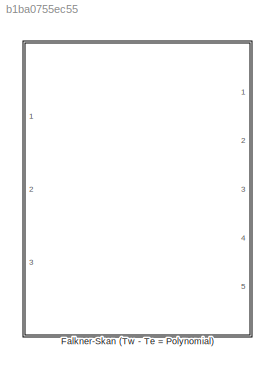
MODEL slx_b1ba0755ec55
KIND library
CONFIG AbsTol = auto
CONFIG FixedStep = auto
CONFIG MaxStep = auto
CONFIG MinStep = auto
CONFIG RelTol = 1e-3
CONFIG SampleTimeConstraint = Unconstrained
CONFIG Solver = ode45
CONFIG SolverMode = Auto
CONFIG SolverName = ode45
CONFIG StartTime = 0.0
CONFIG StopTime = 10.0
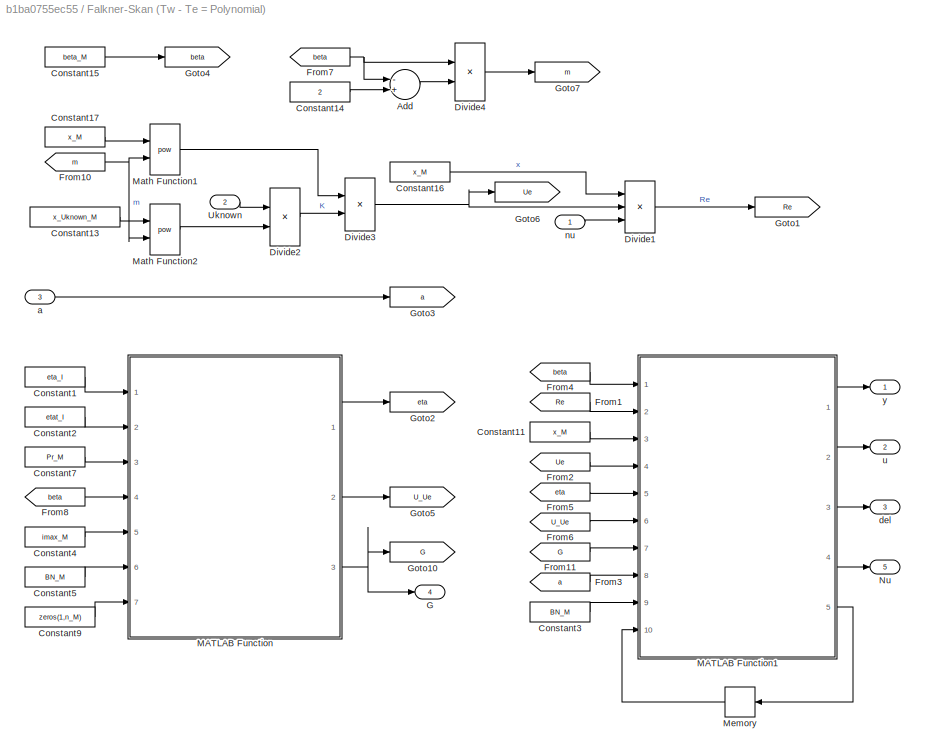
BLOCK [SubSystem] Falkner-Skan (Tw - Te = Polynomial)
  Ports = [3, 5]
  RequestExecContextInheritance = off
BLOCK [Sum] Falkner-Skan (Tw - Te = Polynomial)/Add
  InputSameDT = off
  Inputs = -+
  OutDataTypeStr = Inherit: Inherit via internal rule
  Ports = [2, 1]
  SaturateOnIntegerOverflow = off
BLOCK [Constant] Falkner-Skan (Tw - Te = Polynomial)/Constant1
  Value = eta_I
BLOCK [Constant] Falkner-Skan (Tw - Te = Polynomial)/Constant11
  Value = x_M
BLOCK [Constant] Falkner-Skan (Tw - Te = Polynomial)/Constant13
  Value = x_Uknown_M
BLOCK [Constant] Falkner-Skan (Tw - Te = Polynomial)/Constant14
  Value = 2
BLOCK [Constant] Falkner-Skan (Tw - Te = Polynomial)/Constant15
  Value = beta_M
BLOCK [Constant] Falkner-Skan (Tw - Te = Polynomial)/Constant16
  Value = x_M
BLOCK [Constant] Falkner-Skan (Tw - Te = Polynomial)/Constant17
  Value = x_M
BLOCK [Constant] Falkner-Skan (Tw - Te = Polynomial)/Constant2
  Value = etat_I
BLOCK [Constant] Falkner-Skan (Tw - Te = Polynomial)/Constant3
  Value = BN_M
BLOCK [Constant] Falkner-Skan (Tw - Te = Polynomial)/Constant4
  Value = imax_M
BLOCK [Constant] Falkner-Skan (Tw - Te = Polynomial)/Constant5
  Value = BN_M
BLOCK [Constant] Falkner-Skan (Tw - Te = Polynomial)/Constant7
  Value = Pr_M
BLOCK [Constant] Falkner-Skan (Tw - Te = Polynomial)/Constant9
  Value = zeros(1,n_M)
BLOCK [Product] Falkner-Skan (Tw - Te = Polynomial)/Divide1
  InputSameDT = off
  Inputs = **/
  OutDataTypeStr = Inherit: Inherit via internal rule
  Ports = [3, 1]
  RndMeth = Floor
  SaturateOnIntegerOverflow = off
BLOCK [Product] Falkner-Skan (Tw - Te = Polynomial)/Divide2
  InputSameDT = off
  Inputs = */
  OutDataTypeStr = Inherit: Inherit via internal rule
  Ports = [2, 1]
  RndMeth = Floor
  SaturateOnIntegerOverflow = off
BLOCK [Product] Falkner-Skan (Tw - Te = Polynomial)/Divide3
  InputSameDT = off
  Inputs = **
  OutDataTypeStr = Inherit: Inherit via internal rule
  Ports = [2, 1]
  RndMeth = Floor
  SaturateOnIntegerOverflow = off
BLOCK [Product] Falkner-Skan (Tw - Te = Polynomial)/Divide4
  InputSameDT = off
  Inputs = */
  OutDataTypeStr = Inherit: Inherit via internal rule
  Ports = [2, 1]
  RndMeth = Floor
  SaturateOnIntegerOverflow = off
BLOCK [From] Falkner-Skan (Tw - Te = Polynomial)/From1
  GotoTag = Re
BLOCK [From] Falkner-Skan (Tw - Te = Polynomial)/From10
  GotoTag = m
BLOCK [From] Falkner-Skan (Tw - Te = Polynomial)/From11
  GotoTag = G
BLOCK [From] Falkner-Skan (Tw - Te = Polynomial)/From2
  GotoTag = Ue
BLOCK [From] Falkner-Skan (Tw - Te = Polynomial)/From3
  GotoTag = a
BLOCK [From] Falkner-Skan (Tw - Te = Polynomial)/From4
  GotoTag = beta
BLOCK [From] Falkner-Skan (Tw - Te = Polynomial)/From5
  GotoTag = eta
BLOCK [From] Falkner-Skan (Tw - Te = Polynomial)/From6
  GotoTag = U_Ue
BLOCK [From] Falkner-Skan (Tw - Te = Polynomial)/From7
  GotoTag = beta
BLOCK [From] Falkner-Skan (Tw - Te = Polynomial)/From8
  GotoTag = beta
BLOCK [Outport] Falkner-Skan (Tw - Te = Polynomial)/G
  IconDisplay = Port number
  Port = 4
BLOCK [Goto] Falkner-Skan (Tw - Te = Polynomial)/Goto1
  GotoTag = Re
BLOCK [Goto] Falkner-Skan (Tw - Te = Polynomial)/Goto10
  GotoTag = G
BLOCK [Goto] Falkner-Skan (Tw - Te = Polynomial)/Goto2
  GotoTag = eta
BLOCK [Goto] Falkner-Skan (Tw - Te = Polynomial)/Goto3
  GotoTag = a
BLOCK [Goto] Falkner-Skan (Tw - Te = Polynomial)/Goto4
  GotoTag = beta
BLOCK [Goto] Falkner-Skan (Tw - Te = Polynomial)/Goto5
  GotoTag = U_Ue
BLOCK [Goto] Falkner-Skan (Tw - Te = Polynomial)/Goto6
  GotoTag = Ue
BLOCK [Goto] Falkner-Skan (Tw - Te = Polynomial)/Goto7
  GotoTag = m
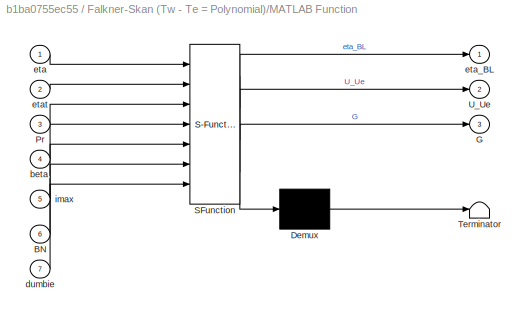
BLOCK [SubSystem] Falkner-Skan (Tw - Te = Polynomial)/MATLAB Function
  ErrorFcn = Stateflow.Translate.translate
  PermitHierarchicalResolution = ExplicitOnly
  Ports = [7, 3]
  RequestExecContextInheritance = off
  SFBlockType = MATLAB Function
  TreatAsAtomicUnit = on
BLOCK [Demux] Falkner-Skan (Tw - Te = Polynomial)/MATLAB Function/ Demux 
  Outputs = 1
  Ports = [1, 1]
BLOCK [S-Function] Falkner-Skan (Tw - Te = Polynomial)/MATLAB Function/ SFunction 
  EnableBusSupport = on
  FunctionName = sf_sfun
  PortCounts = [7 4]
  Ports = [7, 4]
  Tag = Stateflow S-Function lib_Convection_FalknerSkanTempVary 2
BLOCK [Terminator] Falkner-Skan (Tw - Te = Polynomial)/MATLAB Function/ Terminator 
BLOCK [Inport] Falkner-Skan (Tw - Te = Polynomial)/MATLAB Function/BN
  IconDisplay = Port number
  Port = 6
BLOCK [Outport] Falkner-Skan (Tw - Te = Polynomial)/MATLAB Function/G
  IconDisplay = Port number
  Port = 3
BLOCK [Inport] Falkner-Skan (Tw - Te = Polynomial)/MATLAB Function/Pr
  IconDisplay = Port number
  Port = 3
BLOCK [Outport] Falkner-Skan (Tw - Te = Polynomial)/MATLAB Function/U_Ue
  IconDisplay = Port number
  Port = 2
BLOCK [Inport] Falkner-Skan (Tw - Te = Polynomial)/MATLAB Function/beta
  IconDisplay = Port number
  Port = 4
BLOCK [Inport] Falkner-Skan (Tw - Te = Polynomial)/MATLAB Function/dumbie
  IconDisplay = Port number
  Port = 7
BLOCK [Inport] Falkner-Skan (Tw - Te = Polynomial)/MATLAB Function/eta
  IconDisplay = Port number
BLOCK [Outport] Falkner-Skan (Tw - Te = Polynomial)/MATLAB Function/eta_BL
  IconDisplay = Port number
BLOCK [Inport] Falkner-Skan (Tw - Te = Polynomial)/MATLAB Function/etat
  IconDisplay = Port number
  Port = 2
BLOCK [Inport] Falkner-Skan (Tw - Te = Polynomial)/MATLAB Function/imax
  IconDisplay = Port number
  Port = 5
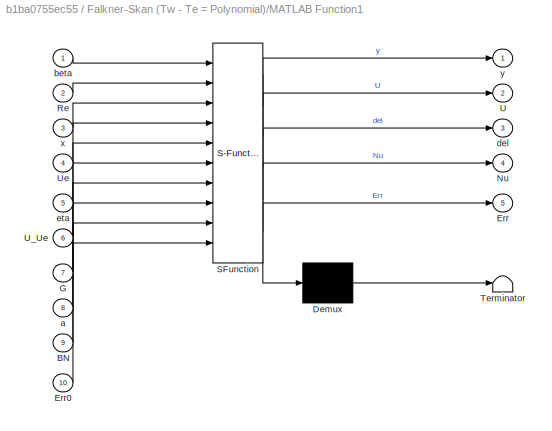
BLOCK [SubSystem] Falkner-Skan (Tw - Te = Polynomial)/MATLAB Function1
  ErrorFcn = Stateflow.Translate.translate
  PermitHierarchicalResolution = ExplicitOnly
  Ports = [10, 5]
  RequestExecContextInheritance = off
  SFBlockType = MATLAB Function
  TreatAsAtomicUnit = on
BLOCK [Demux] Falkner-Skan (Tw - Te = Polynomial)/MATLAB Function1/ Demux 
  Outputs = 1
  Ports = [1, 1]
BLOCK [S-Function] Falkner-Skan (Tw - Te = Polynomial)/MATLAB Function1/ SFunction 
  EnableBusSupport = on
  FunctionName = sf_sfun
  PortCounts = [10 6]
  Ports = [10, 6]
  Tag = Stateflow S-Function lib_Convection_FalknerSkanTempVary 1
BLOCK [Terminator] Falkner-Skan (Tw - Te = Polynomial)/MATLAB Function1/ Terminator 
BLOCK [Inport] Falkner-Skan (Tw - Te = Polynomial)/MATLAB Function1/BN
  IconDisplay = Port number
  Port = 9
BLOCK [Outport] Falkner-Skan (Tw - Te = Polynomial)/MATLAB Function1/Err
  IconDisplay = Port number
  Port = 5
BLOCK [Inport] Falkner-Skan (Tw - Te = Polynomial)/MATLAB Function1/Err0
  IconDisplay = Port number
  Port = 10
BLOCK [Inport] Falkner-Skan (Tw - Te = Polynomial)/MATLAB Function1/G
  IconDisplay = Port number
  Port = 7
BLOCK [Outport] Falkner-Skan (Tw - Te = Polynomial)/MATLAB Function1/Nu
  IconDisplay = Port number
  Port = 4
BLOCK [Inport] Falkner-Skan (Tw - Te = Polynomial)/MATLAB Function1/Re
  IconDisplay = Port number
  Port = 2
BLOCK [Outport] Falkner-Skan (Tw - Te = Polynomial)/MATLAB Function1/U
  IconDisplay = Port number
  Port = 2
BLOCK [Inport] Falkner-Skan (Tw - Te = Polynomial)/MATLAB Function1/U_Ue
  IconDisplay = Port number
  Port = 6
BLOCK [Inport] Falkner-Skan (Tw - Te = Polynomial)/MATLAB Function1/Ue
  IconDisplay = Port number
  Port = 4
BLOCK [Inport] Falkner-Skan (Tw - Te = Polynomial)/MATLAB Function1/a
  IconDisplay = Port number
  Port = 8
BLOCK [Inport] Falkner-Skan (Tw - Te = Polynomial)/MATLAB Function1/beta
  IconDisplay = Port number
BLOCK [Outport] Falkner-Skan (Tw - Te = Polynomial)/MATLAB Function1/del
  IconDisplay = Port number
  Port = 3
BLOCK [Inport] Falkner-Skan (Tw - Te = Polynomial)/MATLAB Function1/eta
  IconDisplay = Port number
  Port = 5
BLOCK [Inport] Falkner-Skan (Tw - Te = Polynomial)/MATLAB Function1/x
  IconDisplay = Port number
  Port = 3
BLOCK [Outport] Falkner-Skan (Tw - Te = Polynomial)/MATLAB Function1/y
  IconDisplay = Port number
BLOCK [Math] Falkner-Skan (Tw - Te = Polynomial)/Math Function1
  Operator = pow
  Ports = [2, 1]
BLOCK [Math] Falkner-Skan (Tw - Te = Polynomial)/Math Function2
  Operator = pow
  Ports = [2, 1]
BLOCK [Memory] Falkner-Skan (Tw - Te = Polynomial)/Memory
  X0 = zeros(1,14)
BLOCK [Outport] Falkner-Skan (Tw - Te = Polynomial)/Nu
  IconDisplay = Port number
  Port = 5
BLOCK [Inport] Falkner-Skan (Tw - Te = Polynomial)/Uknown
  IconDisplay = Port number
  Port = 2
BLOCK [Inport] Falkner-Skan (Tw - Te = Polynomial)/a
  IconDisplay = Port number
  Port = 3
BLOCK [Outport] Falkner-Skan (Tw - Te = Polynomial)/del
  IconDisplay = Port number
  Port = 3
BLOCK [Inport] Falkner-Skan (Tw - Te = Polynomial)/nu
  IconDisplay = Port number
BLOCK [Outport] Falkner-Skan (Tw - Te = Polynomial)/u
  IconDisplay = Port number
  Port = 2
BLOCK [Outport] Falkner-Skan (Tw - Te = Polynomial)/y
  IconDisplay = Port number
LINE Falkner-Skan (Tw - Te = Polynomial)/Add:1 -> Falkner-Skan (Tw - Te = Polynomial)/Divide4:2
LINE Falkner-Skan (Tw - Te = Polynomial)/Constant11:1 -> Falkner-Skan (Tw - Te = Polynomial)/MATLAB Function1:3
LINE Falkner-Skan (Tw - Te = Polynomial)/Constant13:1 -> Falkner-Skan (Tw - Te = Polynomial)/Math Function2:1
LINE Falkner-Skan (Tw - Te = Polynomial)/Constant14:1 -> Falkner-Skan (Tw - Te = Polynomial)/Add:2
LINE Falkner-Skan (Tw - Te = Polynomial)/Constant15:1 -> Falkner-Skan (Tw - Te = Polynomial)/Goto4:1
LINE Falkner-Skan (Tw - Te = Polynomial)/Constant16:1 -> Falkner-Skan (Tw - Te = Polynomial)/Divide1:1
LINE Falkner-Skan (Tw - Te = Polynomial)/Constant17:1 -> Falkner-Skan (Tw - Te = Polynomial)/Math Function1:1
LINE Falkner-Skan (Tw - Te = Polynomial)/Constant1:1 -> Falkner-Skan (Tw - Te = Polynomial)/MATLAB Function:1
LINE Falkner-Skan (Tw - Te = Polynomial)/Constant2:1 -> Falkner-Skan (Tw - Te = Polynomial)/MATLAB Function:2
LINE Falkner-Skan (Tw - Te = Polynomial)/Constant3:1 -> Falkner-Skan (Tw - Te = Polynomial)/MATLAB Function1:9
LINE Falkner-Skan (Tw - Te = Polynomial)/Constant4:1 -> Falkner-Skan (Tw - Te = Polynomial)/MATLAB Function:5
LINE Falkner-Skan (Tw - Te = Polynomial)/Constant5:1 -> Falkner-Skan (Tw - Te = Polynomial)/MATLAB Function:6
LINE Falkner-Skan (Tw - Te = Polynomial)/Constant7:1 -> Falkner-Skan (Tw - Te = Polynomial)/MATLAB Function:3
LINE Falkner-Skan (Tw - Te = Polynomial)/Constant9:1 -> Falkner-Skan (Tw - Te = Polynomial)/MATLAB Function:7
LINE Falkner-Skan (Tw - Te = Polynomial)/Divide1:1 -> Falkner-Skan (Tw - Te = Polynomial)/Goto1:1
LINE Falkner-Skan (Tw - Te = Polynomial)/Divide2:1 -> Falkner-Skan (Tw - Te = Polynomial)/Divide3:2
NET Falkner-Skan (Tw - Te = Polynomial)/Divide3:1 -> Falkner-Skan (Tw - Te = Polynomial)/Divide1:2, Falkner-Skan (Tw - Te = Polynomial)/Goto6:1
LINE Falkner-Skan (Tw - Te = Polynomial)/Divide4:1 -> Falkner-Skan (Tw - Te = Polynomial)/Goto7:1
NET Falkner-Skan (Tw - Te = Polynomial)/From10:1 -> Falkner-Skan (Tw - Te = Polynomial)/Math Function1:2, Falkner-Skan (Tw - Te = Polynomial)/Math Function2:2
LINE Falkner-Skan (Tw - Te = Polynomial)/From11:1 -> Falkner-Skan (Tw - Te = Polynomial)/MATLAB Function1:7
LINE Falkner-Skan (Tw - Te = Polynomial)/From1:1 -> Falkner-Skan (Tw - Te = Polynomial)/MATLAB Function1:2
LINE Falkner-Skan (Tw - Te = Polynomial)/From2:1 -> Falkner-Skan (Tw - Te = Polynomial)/MATLAB Function1:4
LINE Falkner-Skan (Tw - Te = Polynomial)/From3:1 -> Falkner-Skan (Tw - Te = Polynomial)/MATLAB Function1:8
LINE Falkner-Skan (Tw - Te = Polynomial)/From4:1 -> Falkner-Skan (Tw - Te = Polynomial)/MATLAB Function1:1
LINE Falkner-Skan (Tw - Te = Polynomial)/From5:1 -> Falkner-Skan (Tw - Te = Polynomial)/MATLAB Function1:5
LINE Falkner-Skan (Tw - Te = Polynomial)/From6:1 -> Falkner-Skan (Tw - Te = Polynomial)/MATLAB Function1:6
NET Falkner-Skan (Tw - Te = Polynomial)/From7:1 -> Falkner-Skan (Tw - Te = Polynomial)/Add:1, Falkner-Skan (Tw - Te = Polynomial)/Divide4:1
LINE Falkner-Skan (Tw - Te = Polynomial)/From8:1 -> Falkner-Skan (Tw - Te = Polynomial)/MATLAB Function:4
LINE Falkner-Skan (Tw - Te = Polynomial)/MATLAB Function1:1 -> Falkner-Skan (Tw - Te = Polynomial)/y:1
LINE Falkner-Skan (Tw - Te = Polynomial)/MATLAB Function1:2 -> Falkner-Skan (Tw - Te = Polynomial)/u:1
LINE Falkner-Skan (Tw - Te = Polynomial)/MATLAB Function1:3 -> Falkner-Skan (Tw - Te = Polynomial)/del:1
LINE Falkner-Skan (Tw - Te = Polynomial)/MATLAB Function1:4 -> Falkner-Skan (Tw - Te = Polynomial)/Nu:1
LINE Falkner-Skan (Tw - Te = Polynomial)/MATLAB Function1:5 -> Falkner-Skan (Tw - Te = Polynomial)/Memory:1
LINE Falkner-Skan (Tw - Te = Polynomial)/MATLAB Function:1 -> Falkner-Skan (Tw - Te = Polynomial)/Goto2:1
LINE Falkner-Skan (Tw - Te = Polynomial)/MATLAB Function:2 -> Falkner-Skan (Tw - Te = Polynomial)/Goto5:1
NET Falkner-Skan (Tw - Te = Polynomial)/MATLAB Function:3 -> Falkner-Skan (Tw - Te = Polynomial)/G:1, Falkner-Skan (Tw - Te = Polynomial)/Goto10:1
LINE Falkner-Skan (Tw - Te = Polynomial)/Math Function1:1 -> Falkner-Skan (Tw - Te = Polynomial)/Divide3:1
LINE Falkner-Skan (Tw - Te = Polynomial)/Math Function2:1 -> Falkner-Skan (Tw - Te = Polynomial)/Divide2:2
LINE Falkner-Skan (Tw - Te = Polynomial)/Memory:1 -> Falkner-Skan (Tw - Te = Polynomial)/MATLAB Function1:10
LINE Falkner-Skan (Tw - Te = Polynomial)/Uknown:1 -> Falkner-Skan (Tw - Te = Polynomial)/Divide2:1
LINE Falkner-Skan (Tw - Te = Polynomial)/a:1 -> Falkner-Skan (Tw - Te = Polynomial)/Goto3:1
LINE Falkner-Skan (Tw - Te = Polynomial)/nu:1 -> Falkner-Skan (Tw - Te = Polynomial)/Divide1:3
note: NET lines group one-source signal fan-out (src -> all destinations, sorted); 1:1 wires keep LINE
CHART Falkner-Skan (Tw - Te = Polynomial)/MATLAB Function1 states=1 transitions=1
  STATE_LABEL 'eML_blk_kernel()'
  STATE_LABEL 'SCRIPT:\nfunction [y, U, del, Nu, Err] = BoundaryLayerCalcs(beta, Re, x, Ue, eta, U_Ue, G, a, BN, Err0)\n%#codegen\n\n%Description\n% This function block computes dimensional quantities and forms the outputs\n\n%Inputs:\n% beta - pressure gradient variable [1x1]\n% Re - Reynolds number [mx1]\n% x - spatial variable along the surface [mx1]\n% Ue - free-stream velocity [mx1]\n% G - Falkner-Skan Heat Transfer pa...<+3608ch>'
CHART Falkner-Skan (Tw - Te = Polynomial)/MATLAB Function states=1 transitions=1
  STATE_LABEL 'eML_blk_kernel()'
  STATE_LABEL 'SCRIPT:\nfunction [eta_BL, U_Ue, G] = FalknerSkan( eta, etat, Pr, beta, imax, BN, dumbie )\n%#codegen\n\n%Inputs\n% eta - \n% etat - \n% x - Location from leading edge/start of boundary layer (BL) [mx1]\n% Re - Reynolds number [1x1]\n% Pr - Prandtl number [1x1]\n% beta - Pressure gradient parameter [1x1]\n% imax - Maximum number of iterations before solver gives up [1x1]\n% BN - Block name\n\n%Outputs\n% y - Spa...<+3608ch>'
